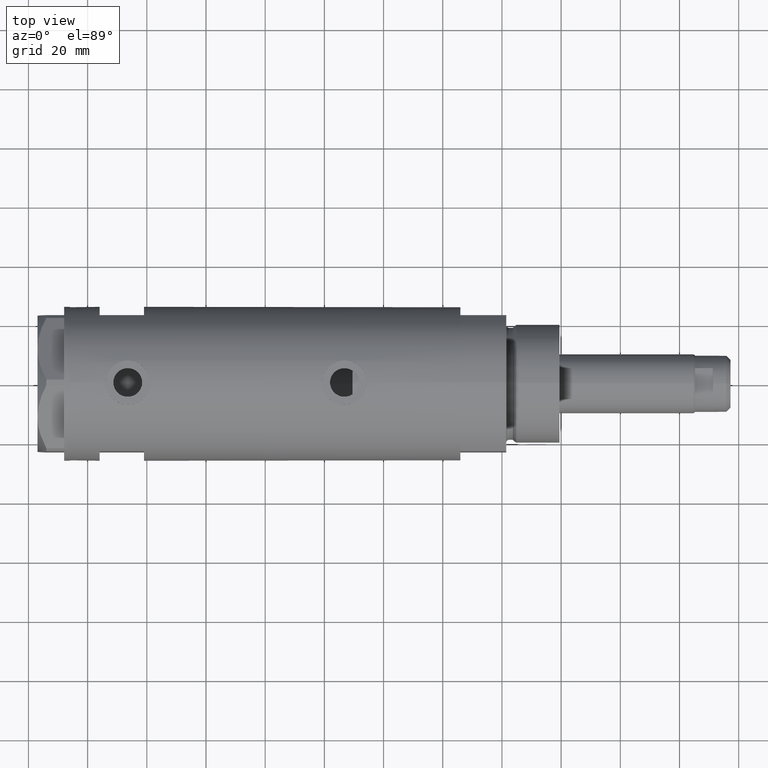
[diagram: clean part render]
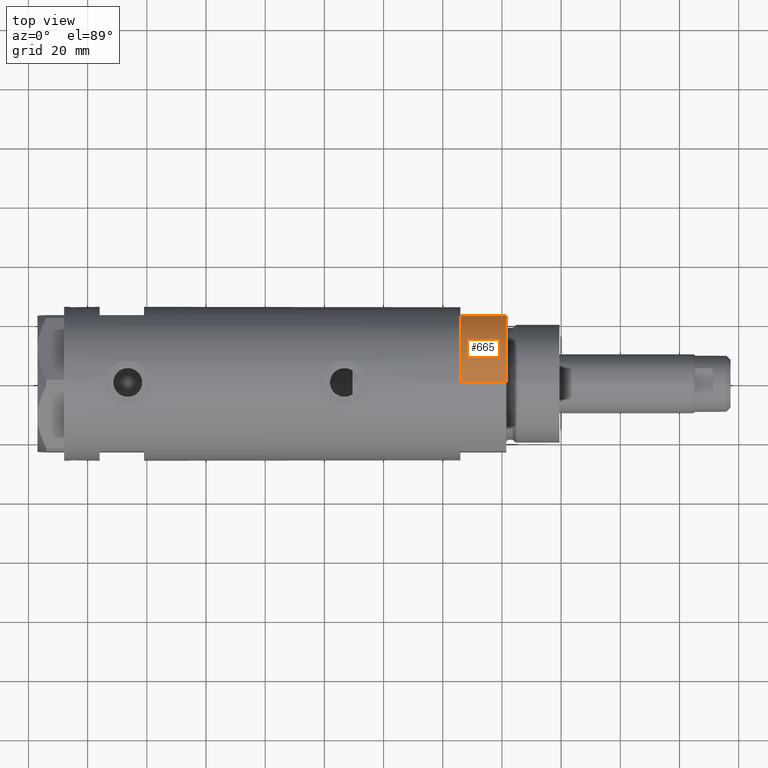
[diagram: same view with one face highlighted and labeled with its STEP entity id]
A machine part, top view. The second image highlights one B-rep face of the part: STEP entity #665.
In plain terms, the highlighted cylindrical surface (partial cylindrical patch) has radius 26 mm, axis along (-1, -0, 0).
Its self-contained STEP definition (entity closure, byte-faithful):
#180 = VECTOR ( 'NONE', #4560, 1000.000000000000000 ) ;
#397 = CARTESIAN_POINT ( 'NONE',  ( 0.000000000000000000, 0.000000000000000000, 15.50000000000000000 ) ) ;
#454 = CARTESIAN_POINT ( 'NONE',  ( -26.00000000000000355, 0.000000000000000000, 15.50000000000000000 ) ) ;
#647 = CARTESIAN_POINT ( 'NONE',  ( -26.00000000000000355, 0.000000000000000000, 15.50000000000000000 ) ) ;
#665 = ADVANCED_FACE ( 'NONE', ( #1155 ), #4012, .T. ) ;
#683 = EDGE_LOOP ( 'NONE', ( #2049, #4883, #5017, #2499 ) ) ;
#695 = CIRCLE ( 'NONE', #4149, 26.00000000000000355 ) ;
#840 = EDGE_CURVE ( 'NONE', #4058, #4469, #4935, .T. ) ;
#1073 = DIRECTION ( 'NONE',  ( 1.000000000000000000, 0.000000000000000000, 0.000000000000000000 ) ) ;
#1112 = AXIS2_PLACEMENT_3D ( 'NONE', #397, #2013, #3631 ) ;
#1155 = FACE_OUTER_BOUND ( 'NONE', #683, .T. ) ;
#1355 = LINE ( 'NONE', #2952, #180 ) ;
#1514 = EDGE_CURVE ( 'NONE', #4377, #3640, #1355, .T. ) ;
#1752 = DIRECTION ( 'NONE',  ( -0.000000000000000000, -0.000000000000000000, -1.000000000000000000 ) ) ;
#1846 = CARTESIAN_POINT ( 'NONE',  ( -12.12435565298215145, 23.00000000000000355, 0.000000000000000000 ) ) ;
#2013 = DIRECTION ( 'NONE',  ( -0.000000000000000000, -0.000000000000000000, -1.000000000000000000 ) ) ;
#2049 = ORIENTED_EDGE ( 'NONE', *, *, #840, .F. ) ;
#2105 = DIRECTION ( 'NONE',  ( 1.000000000000000000, 0.000000000000000000, 0.000000000000000000 ) ) ;
#2206 = DIRECTION ( 'NONE',  ( 0.000000000000000000, 0.000000000000000000, 1.000000000000000000 ) ) ;
#2431 = CARTESIAN_POINT ( 'NONE',  ( -26.00000000000000355, 0.000000000000000000, 0.000000000000000000 ) ) ;
#2499 = ORIENTED_EDGE ( 'NONE', *, *, #4733, .T. ) ;
#2527 = CARTESIAN_POINT ( 'NONE',  ( 0.000000000000000000, 0.000000000000000000, 15.50000000000000000 ) ) ;
#2952 = CARTESIAN_POINT ( 'NONE',  ( -12.12435565298215145, 23.00000000000000355, 0.000000000000000000 ) ) ;
#3154 = AXIS2_PLACEMENT_3D ( 'NONE', #2527, #2206, #2105 ) ;
#3235 = CIRCLE ( 'NONE', #3154, 26.00000000000000355 ) ;
#3572 = CARTESIAN_POINT ( 'NONE',  ( 0.000000000000000000, 0.000000000000000000, 0.000000000000000000 ) ) ;
#3631 = DIRECTION ( 'NONE',  ( -1.000000000000000000, 0.000000000000000000, 0.000000000000000000 ) ) ;
#3640 = VERTEX_POINT ( 'NONE', #4070 ) ;
#3724 = VECTOR ( 'NONE', #1752, 1000.000000000000000 ) ;
#3972 = EDGE_CURVE ( 'NONE', #3640, #4058, #3235, .T. ) ;
#4012 = CYLINDRICAL_SURFACE ( 'NONE', #1112, 26.00000000000000355 ) ;
#4058 = VERTEX_POINT ( 'NONE', #647 ) ;
#4070 = CARTESIAN_POINT ( 'NONE',  ( -12.12435565298214613, 23.00000000000000355, 15.50000000000000000 ) ) ;
#4149 = AXIS2_PLACEMENT_3D ( 'NONE', #3572, #5138, #1073 ) ;
#4377 = VERTEX_POINT ( 'NONE', #1846 ) ;
#4469 = VERTEX_POINT ( 'NONE', #2431 ) ;
#4560 = DIRECTION ( 'NONE',  ( -0.000000000000000000, -0.000000000000000000, 1.000000000000000000 ) ) ;
#4733 = EDGE_CURVE ( 'NONE', #4377, #4469, #695, .T. ) ;
#4883 = ORIENTED_EDGE ( 'NONE', *, *, #3972, .F. ) ;
#4935 = LINE ( 'NONE', #454, #3724 ) ;
#5017 = ORIENTED_EDGE ( 'NONE', *, *, #1514, .F. ) ;
#5138 = DIRECTION ( 'NONE',  ( 0.000000000000000000, 0.000000000000000000, 1.000000000000000000 ) ) ;